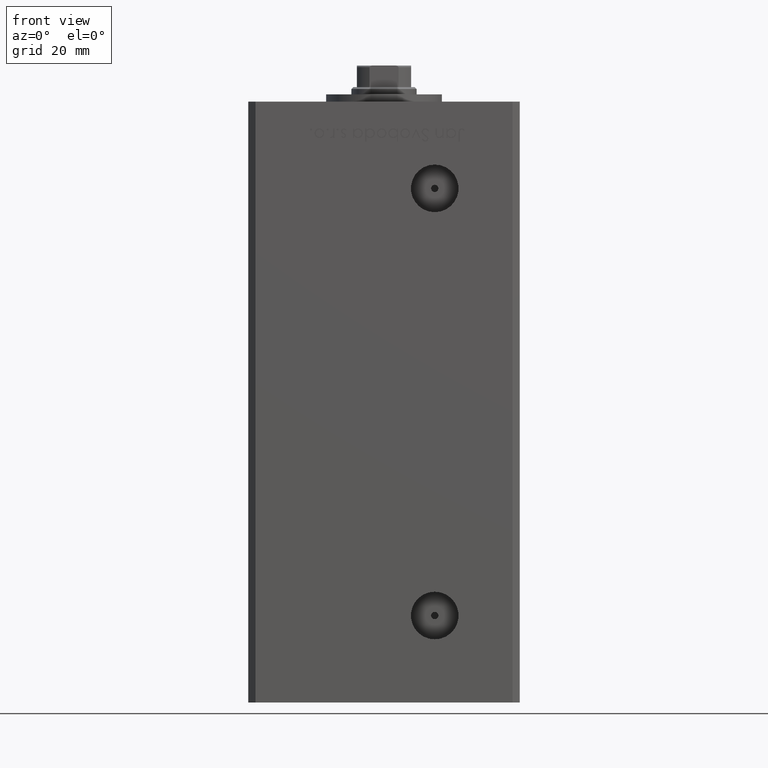
[diagram: clean part render]
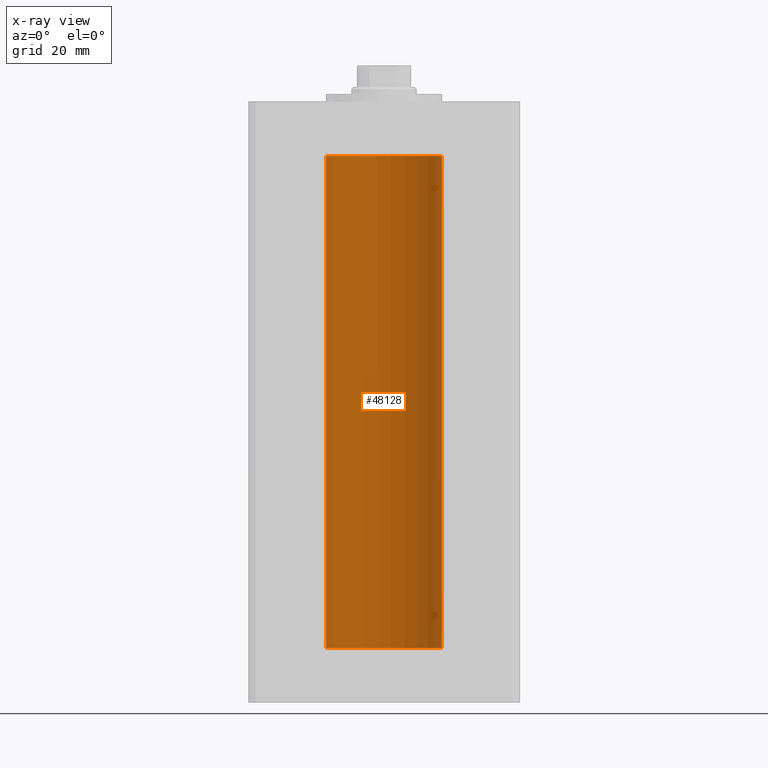
[diagram: x-ray — body ghosted, one internal face saturated and labeled with its STEP entity id]
A machine part, front view, then the same camera in x-ray: the body is ghosted and one INTERNAL B-rep face — a face not visible from any outside direction — is saturated and labeled: STEP entity #48128.
In plain terms, the highlighted cylindrical surface (partial cylindrical patch) has radius 16 mm, axis along (-0, -0, -1).
Its self-contained STEP definition (entity closure, byte-faithful):
#565 = VECTOR ( 'NONE', #21767, 1000.000000000000000 ) ;
#704 = AXIS2_PLACEMENT_3D ( 'NONE', #26044, #50301, #41851 ) ;
#2467 = VERTEX_POINT ( 'NONE', #51296 ) ;
#3961 = DIRECTION ( 'NONE',  ( -0.000000000000000000, -0.000000000000000000, -1.000000000000000000 ) ) ;
#5870 = VECTOR ( 'NONE', #9240, 1000.000000000000000 ) ;
#9240 = DIRECTION ( 'NONE',  ( -0.000000000000000000, -0.000000000000000000, -1.000000000000000000 ) ) ;
#11138 = EDGE_CURVE ( 'NONE', #36587, #2467, #45064, .T. ) ;
#12131 = CARTESIAN_POINT ( 'NONE',  ( 0.000000000000000000, 0.000000000000000000, 136.0000000000000000 ) ) ;
#12207 = AXIS2_PLACEMENT_3D ( 'NONE', #51247, #47268, #35661 ) ;
#13154 = ORIENTED_EDGE ( 'NONE', *, *, #11138, .F. ) ;
#15802 = EDGE_CURVE ( 'NONE', #24676, #36587, #33893, .T. ) ;
#15806 = ORIENTED_EDGE ( 'NONE', *, *, #42458, .T. ) ;
#18069 = CARTESIAN_POINT ( 'NONE',  ( -16.00000000000000000, 0.000000000000000000, 136.0000000000000000 ) ) ;
#20579 = CYLINDRICAL_SURFACE ( 'NONE', #27119, 16.00000000000000000 ) ;
#21655 = CARTESIAN_POINT ( 'NONE',  ( -16.00000000000000000, 0.000000000000000000, 136.0000000000000000 ) ) ;
#21767 = DIRECTION ( 'NONE',  ( -0.000000000000000000, -0.000000000000000000, -1.000000000000000000 ) ) ;
#23762 = DIRECTION ( 'NONE',  ( -1.000000000000000000, 0.000000000000000000, 0.000000000000000000 ) ) ;
#24676 = VERTEX_POINT ( 'NONE', #33263 ) ;
#26044 = CARTESIAN_POINT ( 'NONE',  ( 0.000000000000000000, 0.000000000000000000, 136.0000000000000000 ) ) ;
#27119 = AXIS2_PLACEMENT_3D ( 'NONE', #12131, #3961, #23762 ) ;
#27517 = ORIENTED_EDGE ( 'NONE', *, *, #15802, .F. ) ;
#30406 = EDGE_LOOP ( 'NONE', ( #27517, #50390, #15806, #13154 ) ) ;
#33263 = CARTESIAN_POINT ( 'NONE',  ( 16.00000000000000000, 1.959434878635765131E-15, 136.0000000000000000 ) ) ;
#33893 = LINE ( 'NONE', #45223, #565 ) ;
#35661 = DIRECTION ( 'NONE',  ( 1.000000000000000000, 0.000000000000000000, 0.000000000000000000 ) ) ;
#36587 = VERTEX_POINT ( 'NONE', #36998 ) ;
#36696 = LINE ( 'NONE', #21655, #5870 ) ;
#36998 = CARTESIAN_POINT ( 'NONE',  ( 16.00000000000000000, 1.959434878635765131E-15, 0.000000000000000000 ) ) ;
#38711 = EDGE_CURVE ( 'NONE', #24676, #52196, #49601, .T. ) ;
#40104 = FACE_OUTER_BOUND ( 'NONE', #30406, .T. ) ;
#41851 = DIRECTION ( 'NONE',  ( 1.000000000000000000, 0.000000000000000000, 0.000000000000000000 ) ) ;
#42458 = EDGE_CURVE ( 'NONE', #52196, #2467, #36696, .T. ) ;
#45064 = CIRCLE ( 'NONE', #12207, 16.00000000000000000 ) ;
#45223 = CARTESIAN_POINT ( 'NONE',  ( 16.00000000000000000, 1.959434878635765131E-15, 136.0000000000000000 ) ) ;
#47268 = DIRECTION ( 'NONE',  ( -0.000000000000000000, 0.000000000000000000, 1.000000000000000000 ) ) ;
#48128 = ADVANCED_FACE ( 'NONE', ( #40104 ), #20579, .F. ) ;
#49601 = CIRCLE ( 'NONE', #704, 16.00000000000000000 ) ;
#50301 = DIRECTION ( 'NONE',  ( -0.000000000000000000, 0.000000000000000000, 1.000000000000000000 ) ) ;
#50390 = ORIENTED_EDGE ( 'NONE', *, *, #38711, .T. ) ;
#51247 = CARTESIAN_POINT ( 'NONE',  ( 0.000000000000000000, 0.000000000000000000, 0.000000000000000000 ) ) ;
#51296 = CARTESIAN_POINT ( 'NONE',  ( -16.00000000000000000, 0.000000000000000000, 0.000000000000000000 ) ) ;
#52196 = VERTEX_POINT ( 'NONE', #18069 ) ;